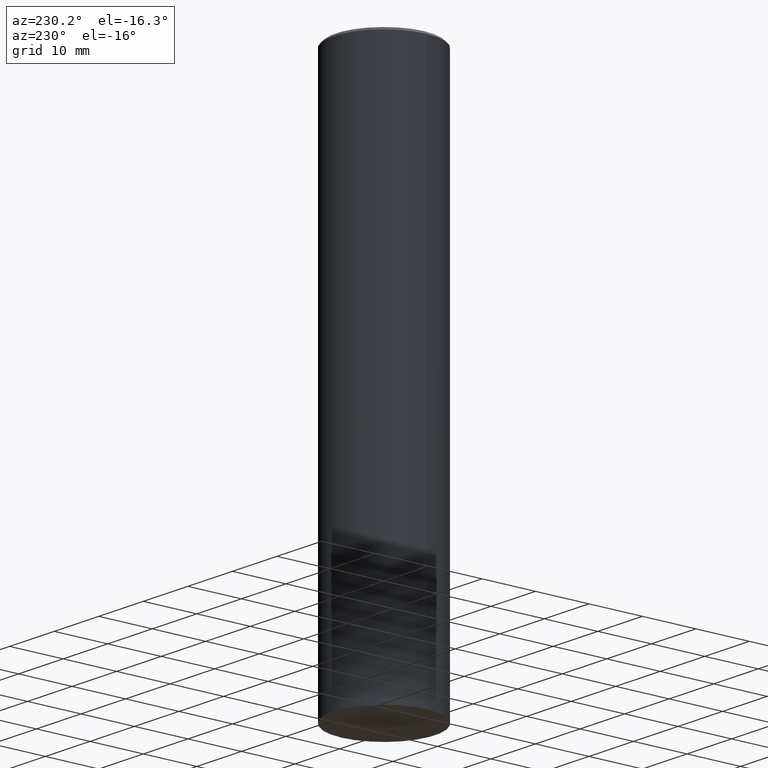
[diagram: clean part render]
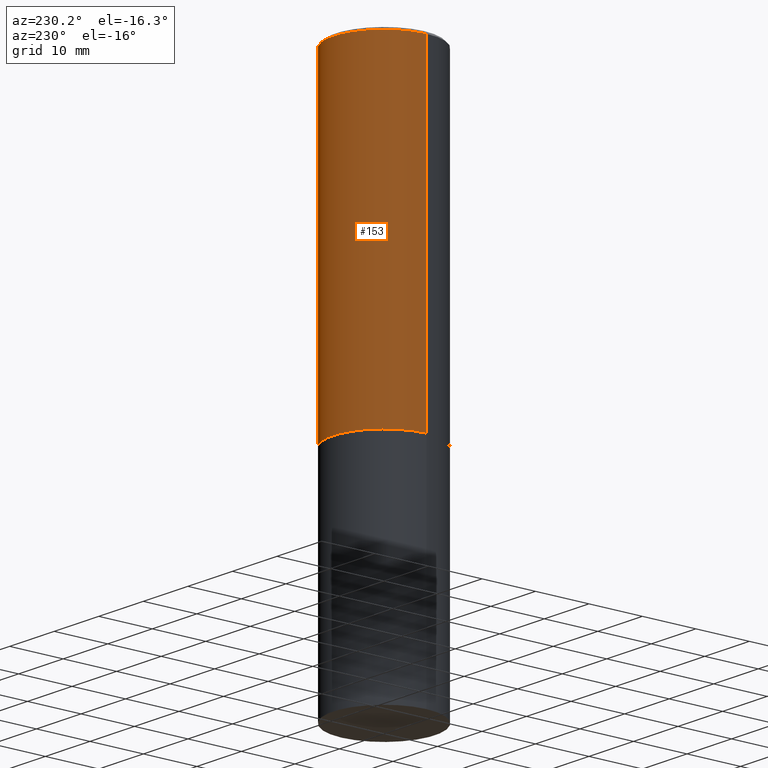
[diagram: same view with one face highlighted and labeled with its STEP entity id]
A machine part, auxiliary view. The second image highlights one B-rep face of the part: STEP entity #153.
In plain terms, the highlighted cylindrical surface (partial cylindrical patch) has radius 9.525 mm, axis along (-0, 0, 1).
Its self-contained STEP definition (entity closure, byte-faithful):
#13 = FACE_OUTER_BOUND ( 'NONE', #41, .T. ) ;
#20 = DIRECTION ( 'NONE',  ( 1.000000000000000000, -6.982962677686265922E-15, 0.000000000000000000 ) ) ;
#31 = VERTEX_POINT ( 'NONE', #280 ) ;
#41 = EDGE_LOOP ( 'NONE', ( #438, #266, #202, #70 ) ) ;
#54 = DIRECTION ( 'NONE',  ( -2.445468806185136877E-29, 3.491481338843145188E-15, 1.000000000000000000 ) ) ;
#70 = ORIENTED_EDGE ( 'NONE', *, *, #105, .F. ) ;
#79 = EDGE_CURVE ( 'NONE', #223, #31, #132, .T. ) ;
#82 = EDGE_CURVE ( 'NONE', #381, #146, #188, .T. ) ;
#87 = EDGE_CURVE ( 'NONE', #31, #146, #189, .T. ) ;
#88 = CARTESIAN_POINT ( 'NONE',  ( 4.890937612370293302E-31, -6.982962677686318726E-17, -0.02000000000000008021 ) ) ;
#97 = CARTESIAN_POINT ( 'NONE',  ( 0.3749999999999997780, -2.642516375941186056E-15, -0.02000000000000008021 ) ) ;
#105 = EDGE_CURVE ( 'NONE', #223, #381, #233, .T. ) ;
#117 = CARTESIAN_POINT ( 'NONE',  ( 0.000000000000000000, 0.000000000000000000, 0.000000000000000000 ) ) ;
#119 = DIRECTION ( 'NONE',  ( 1.000000000000000000, -6.982962677686266711E-15, 4.876176775795935793E-29 ) ) ;
#132 = CIRCLE ( 'NONE', #383, 0.3750000000000000555 ) ;
#146 = VERTEX_POINT ( 'NONE', #262 ) ;
#152 = CYLINDRICAL_SURFACE ( 'NONE', #275, 0.3749999999999998890 ) ;
#153 = ADVANCED_FACE ( 'NONE', ( #13 ), #152, .T. ) ;
#157 = DIRECTION ( 'NONE',  ( -2.445468806185136597E-29, 3.491481338843145583E-15, 1.000000000000000000 ) ) ;
#188 = CIRCLE ( 'NONE', #302, 0.3749999999999997780 ) ;
#189 = LINE ( 'NONE', #427, #260 ) ;
#191 = DIRECTION ( 'NONE',  ( -2.445468806185136597E-29, 3.491481338843145583E-15, 1.000000000000000000 ) ) ;
#202 = ORIENTED_EDGE ( 'NONE', *, *, #82, .F. ) ;
#220 = CARTESIAN_POINT ( 'NONE',  ( 0.3750000000000000555, -1.090738770254597870E-14, -2.373999999999999666 ) ) ;
#223 = VERTEX_POINT ( 'NONE', #220 ) ;
#233 = LINE ( 'NONE', #317, #416 ) ;
#260 = VECTOR ( 'NONE', #290, 39.37007874015748143 ) ;
#262 = CARTESIAN_POINT ( 'NONE',  ( -0.3749999999999997780, 2.548781377355484746E-15, -0.02000000000000008021 ) ) ;
#266 = ORIENTED_EDGE ( 'NONE', *, *, #87, .T. ) ;
#275 = AXIS2_PLACEMENT_3D ( 'NONE', #117, #157, #119 ) ;
#280 = CARTESIAN_POINT ( 'NONE',  ( -0.3750000000000000555, -1.514767903494867141E-15, -2.373999999999999666 ) ) ;
#290 = DIRECTION ( 'NONE',  ( -2.445468806185136877E-29, 3.491481338843145188E-15, 1.000000000000000000 ) ) ;
#302 = AXIS2_PLACEMENT_3D ( 'NONE', #88, #430, #20 ) ;
#317 = CARTESIAN_POINT ( 'NONE',  ( 0.3749999999999998890, -2.618611004132349228E-15, 1.828566290923475362E-29 ) ) ;
#356 = DIRECTION ( 'NONE',  ( 1.000000000000000000, -6.982962677686266711E-15, 0.000000000000000000 ) ) ;
#381 = VERTEX_POINT ( 'NONE', #97 ) ;
#383 = AXIS2_PLACEMENT_3D ( 'NONE', #397, #191, #356 ) ;
#397 = CARTESIAN_POINT ( 'NONE',  ( 5.805542945883513814E-29, -8.288776698413627111E-15, -2.373999999999999666 ) ) ;
#416 = VECTOR ( 'NONE', #54, 39.37007874015748143 ) ;
#427 = CARTESIAN_POINT ( 'NONE',  ( -0.3749999999999998890, 2.664535259100374908E-15, -1.844600658845589038E-29 ) ) ;
#430 = DIRECTION ( 'NONE',  ( -2.445468806185136597E-29, 3.491481338843145583E-15, 1.000000000000000000 ) ) ;
#438 = ORIENTED_EDGE ( 'NONE', *, *, #79, .T. ) ;